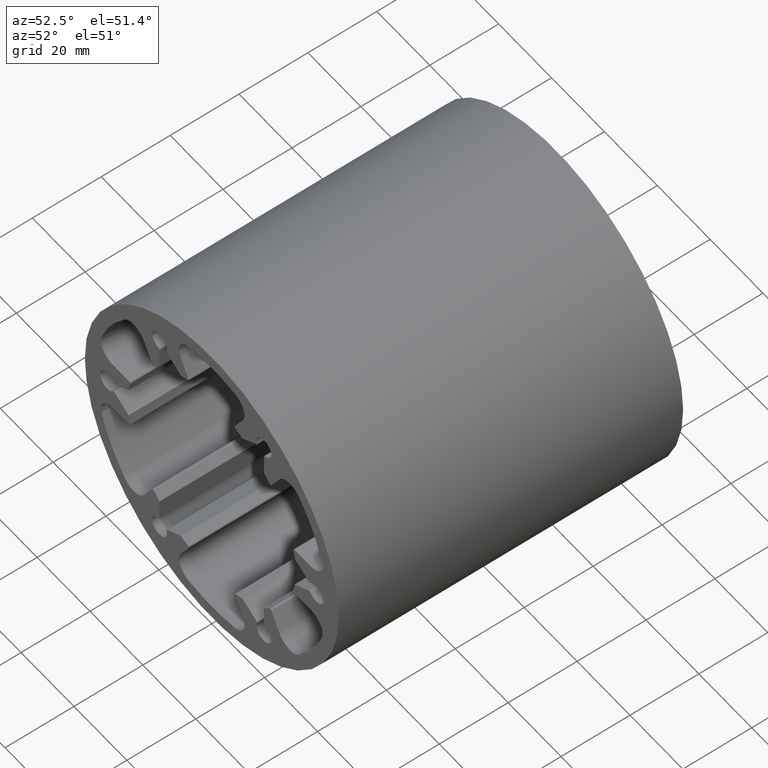
[diagram: clean part render]
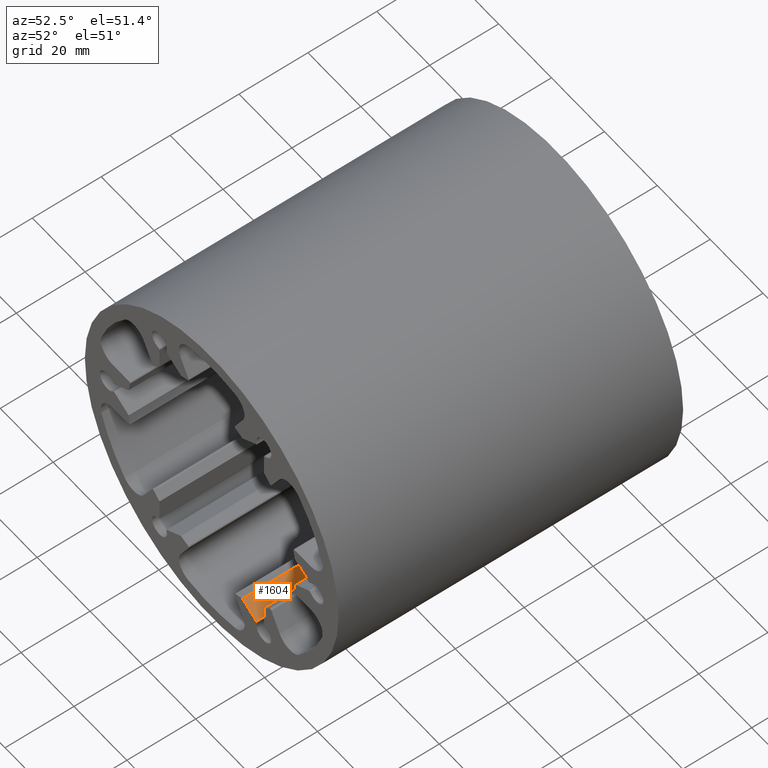
[diagram: same view with one face highlighted and labeled with its STEP entity id]
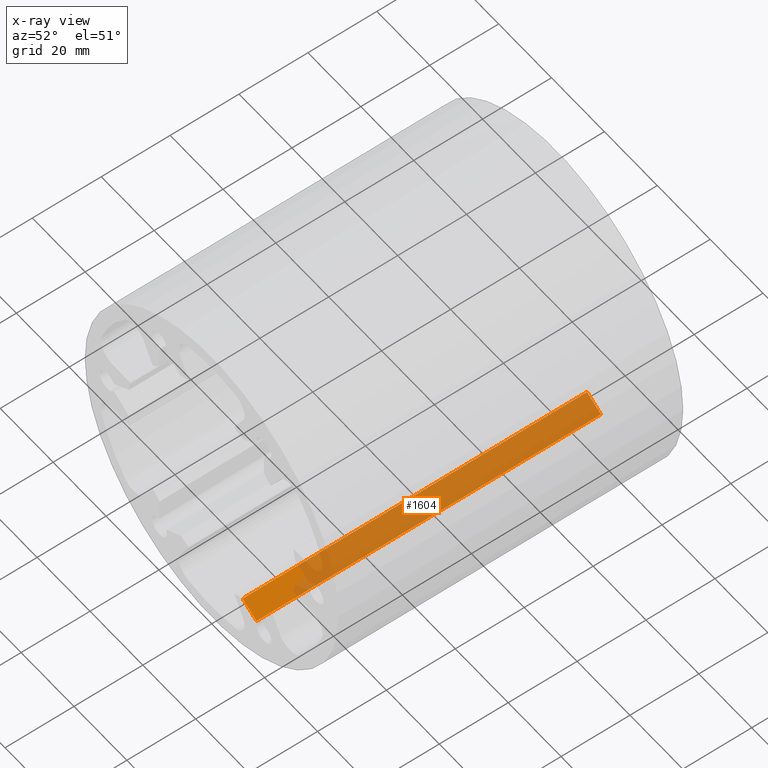
[diagram: x-ray of the same camera — body ghosted, the highlighted face saturated]
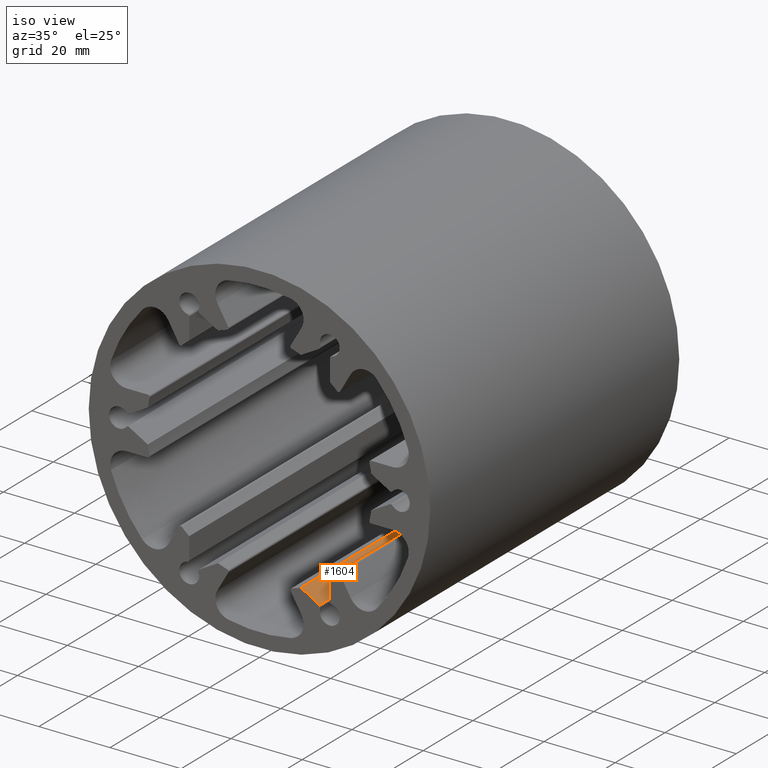
[diagram: same view with one face highlighted and labeled with its STEP entity id]
A machine part, auxiliary view. The second image highlights one B-rep face of the part: STEP entity #1604.
The next image is the same camera in x-ray: the body ghosted, the highlighted face saturated — about 86% of this face is hidden behind the body in this view.
A second angle (iso view) of the same face is appended — the face is thin or edge-on in the first view.
In plain terms, the highlighted planar face has unit normal (-0.5, 0, -0.866).
Its self-contained STEP definition (entity closure, byte-faithful):
#17=PLANE('',#1716);
#44=FACE_OUTER_BOUND('',#131,.T.);
#131=EDGE_LOOP('',(#1036,#1037,#1038,#1039));
#219=LINE('',#2481,#352);
#221=LINE('',#2487,#354);
#222=LINE('',#2489,#355);
#223=LINE('',#2490,#356);
#352=VECTOR('',#1928,10.);
#354=VECTOR('',#1934,10.);
#355=VECTOR('',#1935,10.);
#356=VECTOR('',#1936,10.);
#607=VERTEX_POINT('',#2477);
#609=VERTEX_POINT('',#2480);
#611=VERTEX_POINT('',#2486);
#612=VERTEX_POINT('',#2488);
#778=EDGE_CURVE('',#607,#609,#219,.T.);
#781=EDGE_CURVE('',#611,#607,#221,.T.);
#782=EDGE_CURVE('',#611,#612,#222,.T.);
#783=EDGE_CURVE('',#609,#612,#223,.T.);
#1036=ORIENTED_EDGE('',*,*,#781,.F.);
#1037=ORIENTED_EDGE('',*,*,#782,.T.);
#1038=ORIENTED_EDGE('',*,*,#783,.F.);
#1039=ORIENTED_EDGE('',*,*,#778,.F.);
#1604=ADVANCED_FACE('',(#44),#17,.F.);
#1716=AXIS2_PLACEMENT_3D('',#2485,#1932,#1933);
#1928=DIRECTION('',(0.,1.,0.));
#1932=DIRECTION('center_axis',(-0.500000000000112,0.,-0.866025403784374));
#1933=DIRECTION('ref_axis',(-0.866025403784374,0.,0.500000000000112));
#1934=DIRECTION('',(-0.866025403784374,0.,0.500000000000112));
#1935=DIRECTION('',(0.,1.,0.));
#1936=DIRECTION('',(0.866025403784374,0.,-0.500000000000112));
#2477=CARTESIAN_POINT('',(11.6540501416082,0.,-29.5338046193998));
#2480=CARTESIAN_POINT('',(11.6540501416082,100.,-29.5338046193998));
#2481=CARTESIAN_POINT('',(11.6540501416082,0.,-29.5338046193998));
#2485=CARTESIAN_POINT('Origin',(16.9251106216316,0.,-32.577052806457));
#2486=CARTESIAN_POINT('',(16.9251106216316,0.,-32.577052806457));
#2487=CARTESIAN_POINT('',(3.52505531081489,0.,-24.8405272655988));
#2488=CARTESIAN_POINT('',(16.9251106216316,100.,-32.577052806457));
#2489=CARTESIAN_POINT('',(16.9251106216316,0.,-32.577052806457));
#2490=CARTESIAN_POINT('',(3.52505531081489,100.,-24.8405272655988));